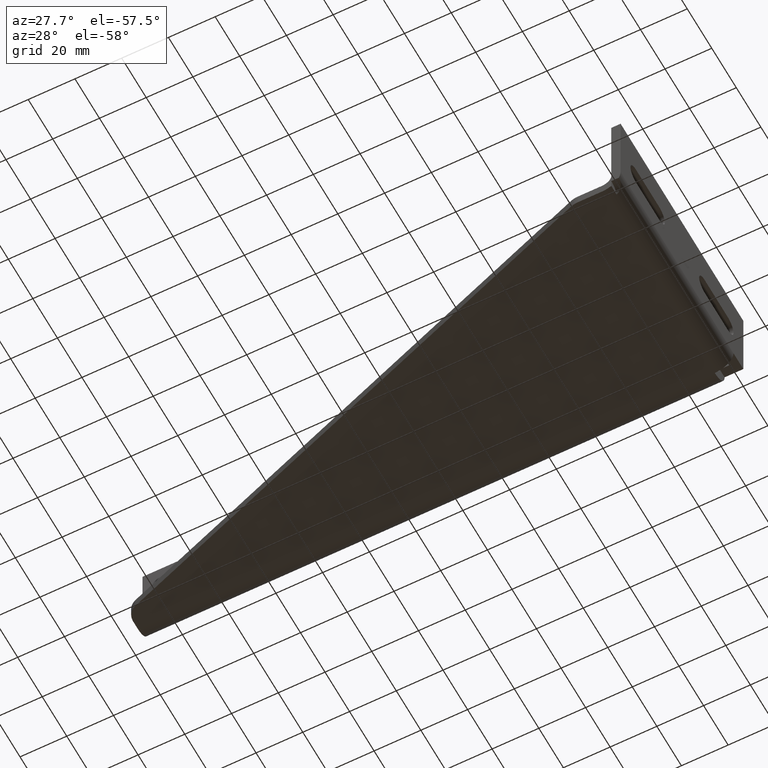
[diagram: clean part render]
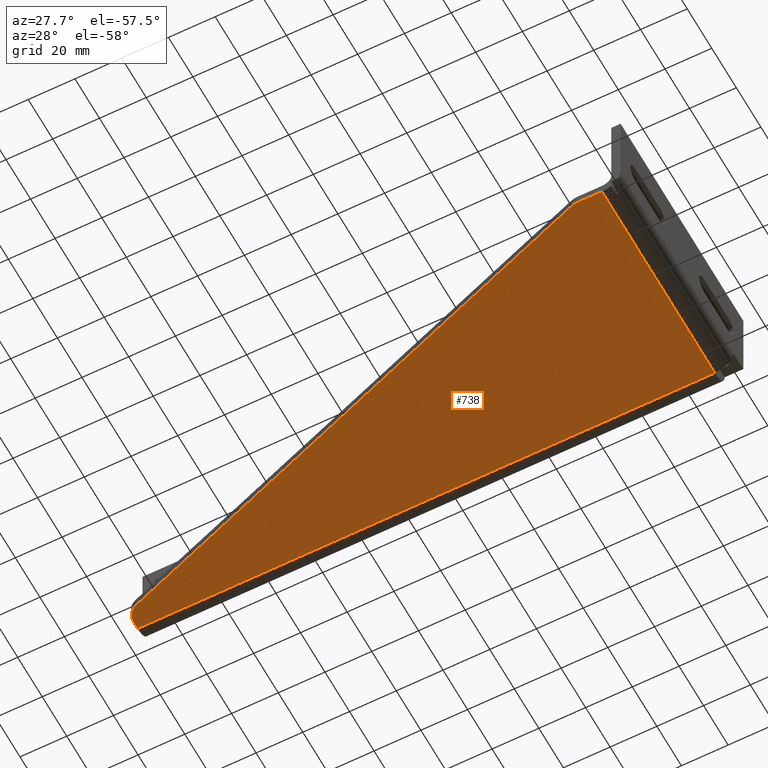
[diagram: same view with one face highlighted and labeled with its STEP entity id]
A machine part, auxiliary view. The second image highlights one B-rep face of the part: STEP entity #738.
In plain terms, the highlighted planar face has unit normal (0, 0, 1).
Its self-contained STEP definition (entity closure, byte-faithful):
#37=CIRCLE('',#793,10.);
#38=CIRCLE('',#796,6.);
#83=FACE_OUTER_BOUND('',#126,.T.);
#126=EDGE_LOOP('',(#550,#551,#552,#553,#554,#555,#556));
#187=LINE('',#1159,#263);
#189=LINE('',#1163,#265);
#190=LINE('',#1167,#266);
#191=LINE('',#1169,#267);
#192=LINE('',#1170,#268);
#263=VECTOR('',#924,10.266474328774);
#265=VECTOR('',#928,243.600984886949);
#266=VECTOR('',#931,3.77289491987311);
#267=VECTOR('',#932,247.);
#268=VECTOR('',#933,92.);
#338=VERTEX_POINT('',#1146);
#341=VERTEX_POINT('',#1153);
#342=VERTEX_POINT('',#1155);
#343=VERTEX_POINT('',#1162);
#344=VERTEX_POINT('',#1164);
#345=VERTEX_POINT('',#1166);
#346=VERTEX_POINT('',#1168);
#418=EDGE_CURVE('',#341,#342,#37,.T.);
#420=EDGE_CURVE('',#342,#338,#187,.T.);
#422=EDGE_CURVE('',#343,#341,#189,.T.);
#423=EDGE_CURVE('',#344,#343,#38,.T.);
#424=EDGE_CURVE('',#345,#344,#190,.T.);
#425=EDGE_CURVE('',#345,#346,#191,.T.);
#426=EDGE_CURVE('',#346,#338,#192,.T.);
#550=ORIENTED_EDGE('',*,*,#418,.F.);
#551=ORIENTED_EDGE('',*,*,#422,.F.);
#552=ORIENTED_EDGE('',*,*,#423,.F.);
#553=ORIENTED_EDGE('',*,*,#424,.F.);
#554=ORIENTED_EDGE('',*,*,#425,.T.);
#555=ORIENTED_EDGE('',*,*,#426,.T.);
#556=ORIENTED_EDGE('',*,*,#420,.F.);
#706=PLANE('',#795);
#738=ADVANCED_FACE('',(#83),#706,.F.);
#793=AXIS2_PLACEMENT_3D('',#1156,#919,#920);
#795=AXIS2_PLACEMENT_3D('',#1161,#926,#927);
#796=AXIS2_PLACEMENT_3D('',#1165,#929,#930);
#919=DIRECTION('center_axis',(0.,0.,1.));
#920=DIRECTION('ref_axis',(-0.170805121882701,-0.985304831175934,0.));
#924=DIRECTION('',(1.,0.,0.));
#926=DIRECTION('center_axis',(0.,0.,1.));
#927=DIRECTION('ref_axis',(1.,0.,0.));
#928=DIRECTION('',(0.941651220677272,-0.336590223561238,0.));
#929=DIRECTION('center_axis',(0.,0.,1.));
#930=DIRECTION('ref_axis',(-0.817493187605022,-0.575938267715717,0.));
#931=DIRECTION('',(3.5527136788005E-16,-1.,0.));
#932=DIRECTION('',(1.,0.,0.));
#933=DIRECTION('',(0.,-1.,0.));
#1146=CARTESIAN_POINT('',(-7.99999999999997,-100.,-22.5));
#1153=CARTESIAN_POINT('',(-21.632376564386,-99.4165122067727,-22.5));
#1155=CARTESIAN_POINT('',(-18.266474328774,-100.,-22.5));
#1156=CARTESIAN_POINT('Origin',(-18.266474328774,-90.,-22.5));
#1159=CARTESIAN_POINT('',(-255.,-100.,-22.5));
#1161=CARTESIAN_POINT('Origin',(-111.007622708411,-33.7244274081193,-22.5));
#1162=CARTESIAN_POINT('',(-251.019541341367,-17.4228022439367,-22.5));
#1163=CARTESIAN_POINT('',(-255.,-16.,-22.5));
#1164=CARTESIAN_POINT('',(-255.,-11.7728949198731,-22.5));
#1165=CARTESIAN_POINT('Origin',(-249.,-11.7728949198731,-22.5));
#1166=CARTESIAN_POINT('',(-255.,-7.99999999999999,-22.5));
#1167=CARTESIAN_POINT('',(-255.,0.,-22.5));
#1168=CARTESIAN_POINT('',(-7.99999999999997,-7.99999999999999,-22.5));
#1169=CARTESIAN_POINT('',(-183.003811354205,-7.99999999999999,-22.5));
#1170=CARTESIAN_POINT('',(-7.99999999999997,-20.8622137040597,-22.5));